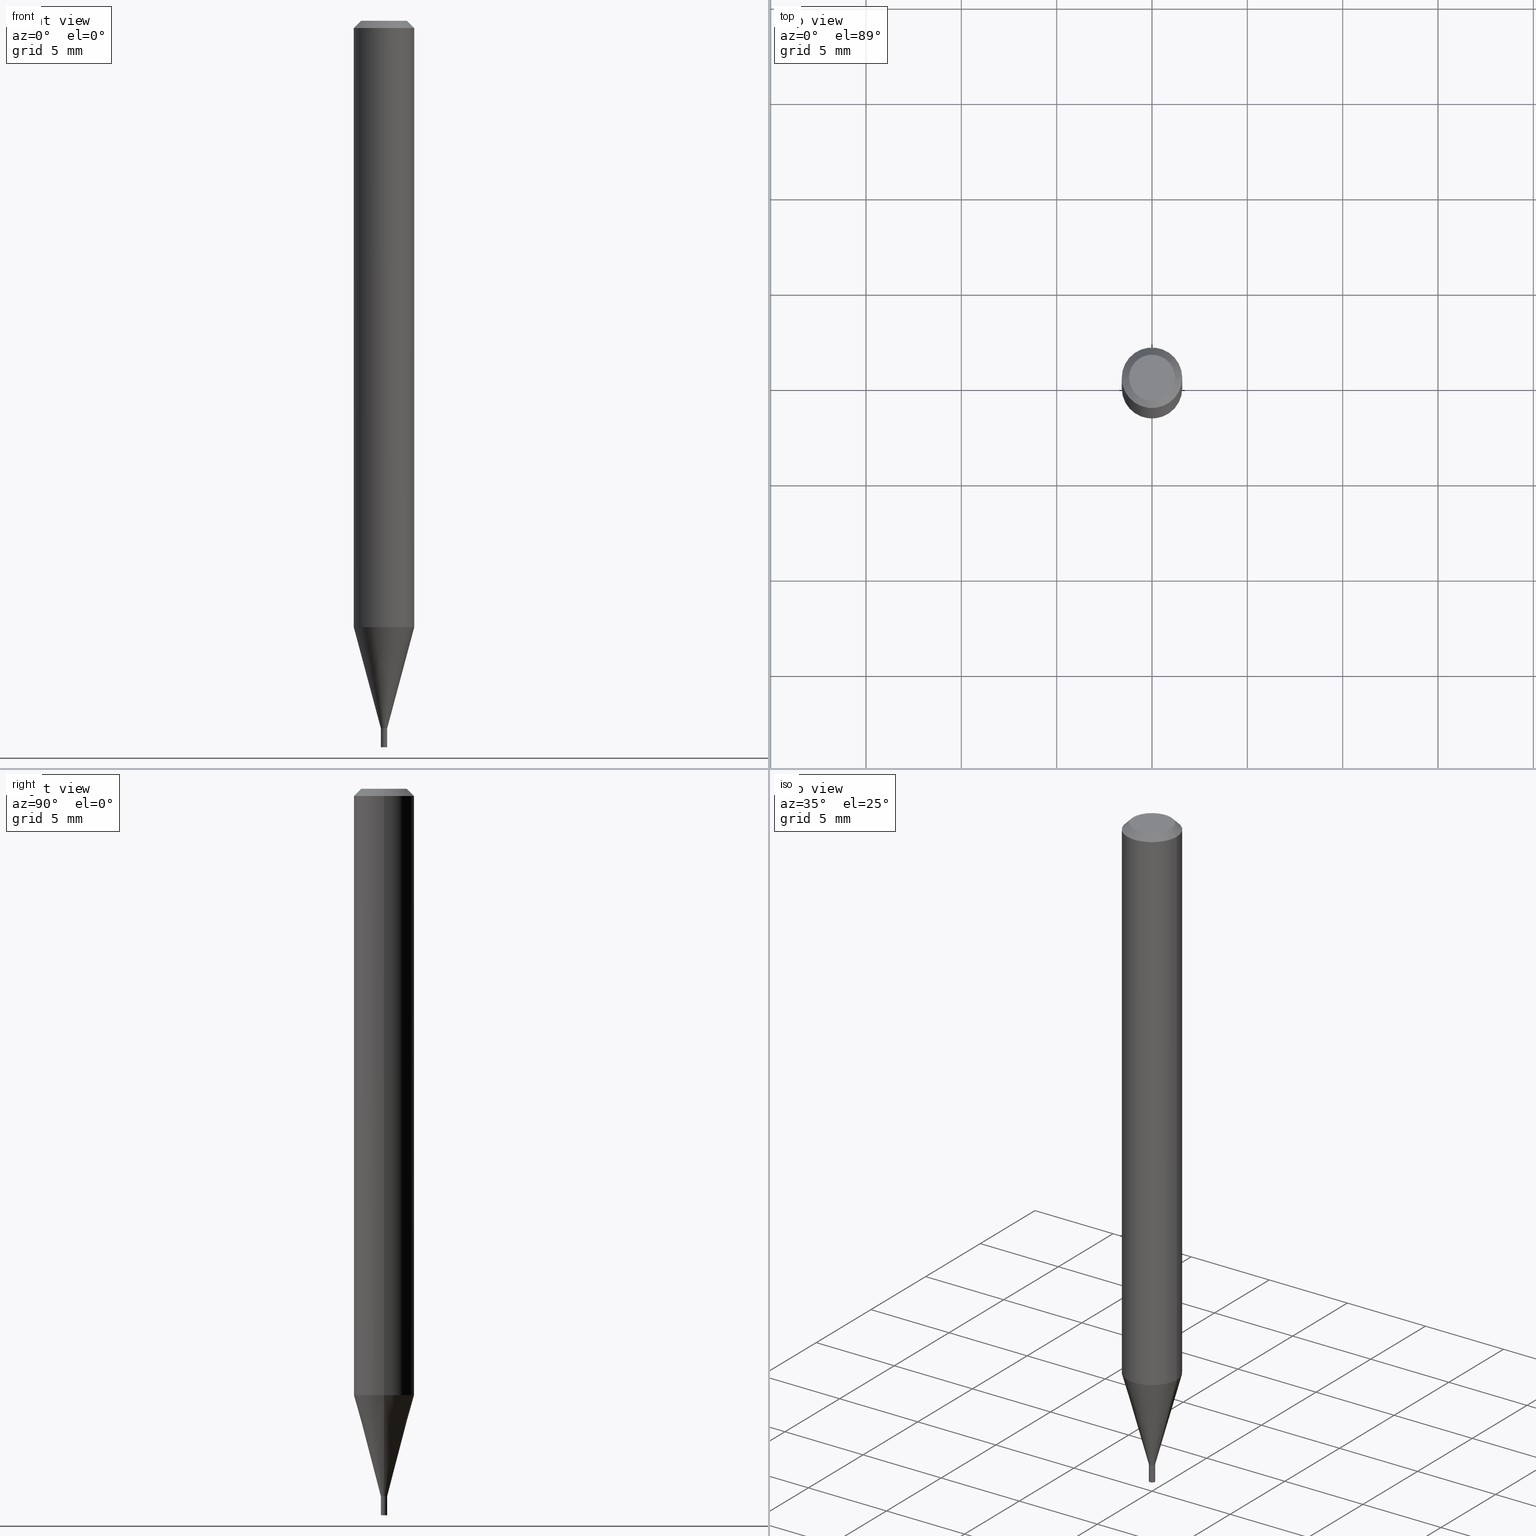
[diagram: canonical four-view strip — front | top / right | iso, engineering-drawing reading convention]
A machine part, canonical four-view strip (front | top / right | iso — engineering-drawing reading convention). The complete STEP part file that produces these views, byte-faithful:
ISO-10303-21;
HEADER;
FILE_DESCRIPTION (( 'STEP AP203' ),
    '1' );
FILE_NAME ('04119.STEP',
    '2024-03-14T17:02:07',
    ( '' ),
    ( '' ),
    'SwSTEP 2.0',
    'SolidWorks 2023',
    '' );
FILE_SCHEMA (( 'CONFIG_CONTROL_DESIGN' ));
ENDSEC;

DATA;
#1 = CC_DESIGN_APPROVAL ( #27, ( #64 ) ) ;
#2 = APPROVAL ( #161, 'UNSPECIFIED' ) ;
#3 = ORIENTED_EDGE ( 'NONE', *, *, #216, .T. ) ;
#4 = ORIENTED_EDGE ( 'NONE', *, *, #445, .T. ) ;
#5 = DIRECTION ( 'NONE',  ( -2.445468806185136597E-29, 3.491481338843145583E-15, 1.000000000000000000 ) ) ;
#6 = CARTESIAN_POINT ( 'NONE',  ( 3.668203209277704895E-29, -5.237222008264718177E-15, -1.500000000000000222 ) ) ;
#7 = DIRECTION ( 'NONE',  ( -2.445468806185136597E-29, 3.491481338843145583E-15, 1.000000000000000000 ) ) ;
#8 = AXIS2_PLACEMENT_3D ( 'NONE', #138, #206, #369 ) ;
#9 = CARTESIAN_POINT ( 'NONE',  ( 3.572829925836484317E-29, -5.101054236049835376E-15, -1.461000000000000076 ) ) ;
#10 = CARTESIAN_POINT ( 'NONE',  ( 0.000000000000000000, 0.000000000000000000, 0.000000000000000000 ) ) ;
#11 = PERSON_AND_ORGANIZATION ( #126, #248 ) ;
#12 = DIRECTION ( 'NONE',  ( -2.445468806185136597E-29, 3.491481338843145583E-15, 1.000000000000000000 ) ) ;
#13 = ADVANCED_FACE ( 'NONE', ( #464 ), #357, .T. ) ;
#14 = DIRECTION ( 'NONE',  ( -2.445468806185136597E-29, 3.491481338843145583E-15, 1.000000000000000000 ) ) ;
#15 = APPROVAL_PERSON_ORGANIZATION ( #118, #400, #158 ) ;
#16 = CARTESIAN_POINT ( 'NONE',  ( 0.04749999999999999362, -4.035134999187546083E-16, 1.823848854028393603E-15 ) ) ;
#17 = LINE ( 'NONE', #448, #249 ) ;
#18 = PLANE ( 'NONE',  #452 ) ;
#19 = LOCAL_TIME ( 13, 2, 7.000000000000000000, #51 ) ;
#20 = CIRCLE ( 'NONE', #340, 0.06250000000000000000 ) ;
#21 = CARTESIAN_POINT ( 'NONE',  ( 3.572829925836483756E-29, -5.101054236049834587E-15, -1.460999999999999854 ) ) ;
#22 = EDGE_LOOP ( 'NONE', ( #361, #144 ) ) ;
#23 = CARTESIAN_POINT ( 'NONE',  ( 3.668203209277705088E-31, -5.237222008264718399E-17, -0.01499999999999999944 ) ) ;
#24 = PRODUCT ( '04119', '04119', '', ( #338 ) ) ;
#25 = LINE ( 'NONE', #151, #307 ) ;
#26 = EDGE_CURVE ( 'NONE', #67, #125, #443, .T. ) ;
#27 = APPROVAL ( #304, 'UNSPECIFIED' ) ;
#28 = EDGE_LOOP ( 'NONE', ( #427, #426, #102, #66 ) ) ;
#29 = CC_DESIGN_APPROVAL ( #2, ( #147 ) ) ;
#30 =( CONVERSION_BASED_UNIT ( 'INCH', #188 ) LENGTH_UNIT ( ) NAMED_UNIT ( #455 ) );
#31 = EDGE_LOOP ( 'NONE', ( #367, #354, #215, #3 ) ) ;
#32 = DIRECTION ( 'NONE',  ( 1.000000000000000000, -6.982962677686258822E-15, 0.000000000000000000 ) ) ;
#33 = ORIENTED_EDGE ( 'NONE', *, *, #181, .T. ) ;
#34 = ORIENTED_EDGE ( 'NONE', *, *, #46, .T. ) ;
#35 = ORIENTED_EDGE ( 'NONE', *, *, #96, .F. ) ;
#36 = APPLICATION_CONTEXT ( 'configuration controlled 3d designs of mechanical parts and assemblies' ) ;
#37 = ORIENTED_EDGE ( 'NONE', *, *, #81, .F. ) ;
#38 = CARTESIAN_POINT ( 'NONE',  ( 3.571607191433392636E-29, -5.099308495380415450E-15, -1.460500000000000131 ) ) ;
#39 = DIRECTION ( 'NONE',  ( 1.000000000000000000, -6.982962677686265922E-15, 4.876176775795935793E-29 ) ) ;
#40 = DIRECTION ( 'NONE',  ( -0.2588190451025211281, 5.211531920934548675E-15, 0.9659258262890682012 ) ) ;
#41 = CARTESIAN_POINT ( 'NONE',  ( 0.006499999999999648420, -5.146443493454794469E-15, -1.461000000000000076 ) ) ;
#42 = APPROVAL_PERSON_ORGANIZATION ( #11, #2, #115 ) ;
#43 = APPROVAL_DATE_TIME ( #197, #27 ) ;
#44 = DIRECTION ( 'NONE',  ( -2.445468806185136597E-29, 3.491481338843145583E-15, 1.000000000000000000 ) ) ;
#45 = ADVANCED_FACE ( 'NONE', ( #49 ), #380, .T. ) ;
#46 = EDGE_CURVE ( 'NONE', #67, #101, #331, .T. ) ;
#47 = CARTESIAN_POINT ( 'NONE',  ( 0.006499999999999998834, -5.146443493454796047E-15, -1.461000000000000076 ) ) ;
#48 = APPLICATION_PROTOCOL_DEFINITION ( 'international standard', 'config_control_design', 1994, #132 ) ;
#49 = FACE_OUTER_BOUND ( 'NONE', #130, .T. ) ;
#50 = CC_DESIGN_SECURITY_CLASSIFICATION ( #64, ( #219 ) ) ;
#51 = COORDINATED_UNIVERSAL_TIME_OFFSET ( 5, 0, .BEHIND. ) ;
#52 = EDGE_CURVE ( 'NONE', #179, #170, #294, .T. ) ;
#53 = DIRECTION ( 'NONE',  ( -2.445468806185136597E-29, 3.491481338843145583E-15, 1.000000000000000000 ) ) ;
#54 = PERSON_AND_ORGANIZATION ( #126, #248 ) ;
#55 = CARTESIAN_POINT ( 'NONE',  ( 0.006499999999999998834, -5.282611265669678847E-15, -1.500000000000000222 ) ) ;
#56 = DIRECTION ( 'NONE',  ( -2.445468806185136877E-29, 3.491481338843145188E-15, 1.000000000000000000 ) ) ;
#57 = AXIS2_PLACEMENT_3D ( 'NONE', #87, #418, #239 ) ;
#58 = DIRECTION ( 'NONE',  ( 1.000000000000000000, -6.982962677686267499E-15, 5.108144071313017768E-29 ) ) ;
#59 = EDGE_CURVE ( 'NONE', #401, #178, #228, .T. ) ;
#60 = CC_DESIGN_DATE_AND_TIME_ASSIGNMENT ( #163, #77, ( #147 ) ) ;
#61 = DIRECTION ( 'NONE',  ( -2.445468806185136597E-29, 3.491481338843145583E-15, 1.000000000000000000 ) ) ;
#62 = ORIENTED_EDGE ( 'NONE', *, *, #279, .T. ) ;
#63 = EDGE_LOOP ( 'NONE', ( #37, #315 ) ) ;
#64 = SECURITY_CLASSIFICATION ( '', '', #153 ) ;
#65 = CARTESIAN_POINT ( 'NONE',  ( -0.006499999999999648420, -5.054868958225431584E-15, -1.461000000000000076 ) ) ;
#66 = ORIENTED_EDGE ( 'NONE', *, *, #445, .F. ) ;
#67 = VERTEX_POINT ( 'NONE', #260 ) ;
#68 = ORIENTED_EDGE ( 'NONE', *, *, #399, .T. ) ;
#69 = AXIS2_PLACEMENT_3D ( 'NONE', #308, #61, #58 ) ;
#70 = EDGE_LOOP ( 'NONE', ( #430, #246 ) ) ;
#71 = AXIS2_PLACEMENT_3D ( 'NONE', #10, #195, #154 ) ;
#72 = EDGE_CURVE ( 'NONE', #101, #251, #368, .T. ) ;
#73 = DIRECTION ( 'NONE',  ( -2.438088387897960049E-29, 3.491481338843145188E-15, 1.000000000000000000 ) ) ;
#74 = DIRECTION ( 'NONE',  ( -2.445468806185136597E-29, 3.491481338843145583E-15, 1.000000000000000000 ) ) ;
#75 = DIRECTION ( 'NONE',  ( 2.445468806185136597E-29, -3.491481338843145583E-15, -1.000000000000000000 ) ) ;
#76 = CYLINDRICAL_SURFACE ( 'NONE', #363, 0.06250000000000000000 ) ;
#77 = DATE_TIME_ROLE ( 'creation_date' ) ;
#78 = DIRECTION ( 'NONE',  ( -2.445468806185136597E-29, 3.491481338843145583E-15, 1.000000000000000000 ) ) ;
#79 = CARTESIAN_POINT ( 'NONE',  ( 0.06250000000000001388, -4.807787801391715089E-15, -1.252005154776141937 ) ) ;
#80 = CALENDAR_DATE ( 2024, 14, 3 ) ;
#81 = EDGE_CURVE ( 'NONE', #207, #326, #431, .T. ) ;
#82 = CARTESIAN_POINT ( 'NONE',  ( -0.006499999999999998834, -5.122952844332871012E-15, -1.500000000000000222 ) ) ;
#83 = AXIS2_PLACEMENT_3D ( 'NONE', #334, #235, #413 ) ;
#84 = PERSON_AND_ORGANIZATION ( #126, #248 ) ;
#85 = CARTESIAN_POINT ( 'NONE',  ( 3.571607191433392636E-29, -5.099308495380415450E-15, -1.460500000000000131 ) ) ;
#86 = CARTESIAN_POINT ( 'NONE',  ( -0.005999999999999998390, -5.058421671904228538E-15, -1.460999999999999854 ) ) ;
#87 = CARTESIAN_POINT ( 'NONE',  ( 4.538925740499645275E-17, 0.006499999999994897880, -1.461000000000000076 ) ) ;
#88 = ORIENTED_EDGE ( 'NONE', *, *, #433, .F. ) ;
#89 = EDGE_CURVE ( 'NONE', #401, #125, #20, .T. ) ;
#90 = CC_DESIGN_DATE_AND_TIME_ASSIGNMENT ( #411, #268, ( #64 ) ) ;
#91 = CIRCLE ( 'NONE', #157, 0.005999999999999998390 ) ;
#92 = CARTESIAN_POINT ( 'NONE',  ( 0.000000000000000000, 0.000000000000000000, 0.000000000000000000 ) ) ;
#93 = ORIENTED_EDGE ( 'NONE', *, *, #52, .F. ) ;
#94 = CARTESIAN_POINT ( 'NONE',  ( 3.572829925836484317E-29, -5.101054236049835376E-15, -1.461000000000000076 ) ) ;
#95 = VERTEX_POINT ( 'NONE', #116 ) ;
#96 = EDGE_CURVE ( 'NONE', #95, #178, #435, .T. ) ;
#97 = ORIENTED_EDGE ( 'NONE', *, *, #26, .F. ) ;
#98 = AXIS2_PLACEMENT_3D ( 'NONE', #242, #274, #127 ) ;
#99 = DIRECTION ( 'NONE',  ( -2.445468806185136597E-29, 3.491481338843145583E-15, 1.000000000000000000 ) ) ;
#100 = EDGE_LOOP ( 'NONE', ( #309, #388, #327, #362 ) ) ;
#101 = VERTEX_POINT ( 'NONE', #444 ) ;
#102 = ORIENTED_EDGE ( 'NONE', *, *, #350, .F. ) ;
#103 = ADVANCED_FACE ( 'NONE', ( #152 ), #186, .T. ) ;
#104 = CC_DESIGN_PERSON_AND_ORGANIZATION_ASSIGNMENT ( #378, #376, ( #147 ) ) ;
#105 =( GEOMETRIC_REPRESENTATION_CONTEXT ( 3 ) GLOBAL_UNCERTAINTY_ASSIGNED_CONTEXT ( ( #225 ) ) GLOBAL_UNIT_ASSIGNED_CONTEXT ( ( #30, #258, #223 ) ) REPRESENTATION_CONTEXT ( 'NONE', 'WORKASPACE' ) );
#106 = CARTESIAN_POINT ( 'NONE',  ( -0.006499999999999921639, 4.618527782440595529E-17, -3.197307808665649928E-31 ) ) ;
#107 = AXIS2_PLACEMENT_3D ( 'NONE', #139, #14, #412 ) ;
#108 = DIRECTION ( 'NONE',  ( -2.445468806185136877E-29, 3.491481338843145188E-15, 1.000000000000000000 ) ) ;
#109 = APPLICATION_PROTOCOL_DEFINITION ( 'international standard', 'config_control_design', 1994, #36 ) ;
#110 = CARTESIAN_POINT ( 'NONE',  ( -0.06250000000000000000, 3.840629472727444916E-16, -0.01499999999999999944 ) ) ;
#111 = CALENDAR_DATE ( 2024, 14, 3 ) ;
#112 = LOCAL_TIME ( 13, 2, 7.000000000000000000, #382 ) ;
#113 = CARTESIAN_POINT ( 'NONE',  ( 3.061739551188048942E-29, -4.371352634036324208E-15, -1.252005154776141937 ) ) ;
#114 = VECTOR ( 'NONE', #298, 39.37007874015748143 ) ;
#115 = APPROVAL_ROLE ( '' ) ;
#116 = CARTESIAN_POINT ( 'NONE',  ( -0.04749999999999999362, 3.578768372314242553E-16, 1.823848854028388475E-15 ) ) ;
#117 = FACE_OUTER_BOUND ( 'NONE', #289, .T. ) ;
#118 = PERSON_AND_ORGANIZATION ( #126, #248 ) ;
#119 = DIRECTION ( 'NONE',  ( -0.7071067811869503617, 7.493145998871808820E-15, 0.7071067811861444508 ) ) ;
#120 = ORIENTED_EDGE ( 'NONE', *, *, #285, .T. ) ;
#121 = CIRCLE ( 'NONE', #98, 0.06250000000000000000 ) ;
#122 = CALENDAR_DATE ( 2024, 14, 3 ) ;
#123 = AXIS2_PLACEMENT_3D ( 'NONE', #267, #78, #224 ) ;
#124 = CYLINDRICAL_SURFACE ( 'NONE', #460, 0.006499999999999921639 ) ;
#125 = VERTEX_POINT ( 'NONE', #79 ) ;
#126 = PERSON ( 'UNSPECIFIED', 'UNSPECIFIED', 'UNSPECIFIED', ('UNSPECIFIED'), ('UNSPECIFIED'), ('UNSPECIFIED') ) ;
#127 = DIRECTION ( 'NONE',  ( 1.000000000000000000, -6.982962677686266711E-15, 0.000000000000000000 ) ) ;
#128 = ADVANCED_FACE ( 'NONE', ( #407 ), #439, .T. ) ;
#129 = DIRECTION ( 'NONE',  ( 1.000000000000000000, -6.982962677686334553E-15, 0.000000000000000000 ) ) ;
#130 = EDGE_LOOP ( 'NONE', ( #253, #243, #325, #68 ) ) ;
#131 = VECTOR ( 'NONE', #40, 39.37007874015748143 ) ;
#132 = APPLICATION_CONTEXT ( 'configuration controlled 3d designs of mechanical parts and assemblies' ) ;
#133 = CONICAL_SURFACE ( 'NONE', #409, 0.006499999999999648420, 0.2617993877991497964 ) ;
#134 = PRODUCT_DEFINITION_SHAPE ( 'NONE', 'NONE',  #147 ) ;
#135 = DIRECTION ( 'NONE',  ( -2.445468806185136597E-29, 3.491481338843145583E-15, 1.000000000000000000 ) ) ;
#136 = ORIENTED_EDGE ( 'NONE', *, *, #221, .F. ) ;
#137 = ADVANCED_FACE ( 'NONE', ( #404 ), #76, .T. ) ;
#138 = CARTESIAN_POINT ( 'NONE',  ( 3.572829925836483756E-29, -5.101054236049834587E-15, -1.460999999999999854 ) ) ;
#139 = CARTESIAN_POINT ( 'NONE',  ( 3.572829925836483756E-29, -5.101054236049834587E-15, -1.460999999999999854 ) ) ;
#140 = CYLINDRICAL_SURFACE ( 'NONE', #402, 0.006499999999999998834 ) ;
#141 = EDGE_LOOP ( 'NONE', ( #461, #317, #4, #93 ) ) ;
#142 = CIRCLE ( 'NONE', #218, 0.06250000000000000000 ) ;
#143 = CIRCLE ( 'NONE', #196, 0.06250000000000000000 ) ;
#144 = ORIENTED_EDGE ( 'NONE', *, *, #230, .F. ) ;
#145 = ORIENTED_EDGE ( 'NONE', *, *, #26, .T. ) ;
#146 = ADVANCED_FACE ( 'NONE', ( #370 ), #148, .F. ) ;
#147 = PRODUCT_DEFINITION ( 'UNKNOWN', '', #219, #276 ) ;
#148 = PLANE ( 'NONE',  #453 ) ;
#149 = DIRECTION ( 'NONE',  ( 1.000000000000000000, -6.982962677686262766E-15, 0.000000000000000000 ) ) ;
#150 = CONICAL_SURFACE ( 'NONE', #174, 0.06250000000000000000, 0.7853981633973876608 ) ;
#151 = CARTESIAN_POINT ( 'NONE',  ( 0.06250000000000000000, -4.811533449433679005E-16, -0.01499999999999999944 ) ) ;
#152 = FACE_OUTER_BOUND ( 'NONE', #28, .T. ) ;
#153 = SECURITY_CLASSIFICATION_LEVEL ( 'unclassified' ) ;
#154 = DIRECTION ( 'NONE',  ( 1.000000000000000000, -6.982962677686266711E-15, 4.876176775795935793E-29 ) ) ;
#155 = LOCAL_TIME ( 13, 2, 7.000000000000000000, #299 ) ;
#156 = CARTESIAN_POINT ( 'NONE',  ( -0.06250000000000000000, 4.440892098500626162E-16, -3.074334431409316114E-30 ) ) ;
#157 = AXIS2_PLACEMENT_3D ( 'NONE', #21, #420, #129 ) ;
#158 = APPROVAL_ROLE ( '' ) ;
#159 = FACE_OUTER_BOUND ( 'NONE', #434, .T. ) ;
#160 = EDGE_CURVE ( 'NONE', #125, #401, #143, .T. ) ;
#161 = APPROVAL_STATUS ( 'not_yet_approved' ) ;
#162 = PLANE ( 'NONE',  #57 ) ;
#163 = DATE_AND_TIME ( #416, #271 ) ;
#164 = CARTESIAN_POINT ( 'NONE',  ( 3.316907271900976096E-16, 0.04749999999999999362, 7.460790634191459752E-16 ) ) ;
#165 = VERTEX_POINT ( 'NONE', #375 ) ;
#166 = CIRCLE ( 'NONE', #8, 0.005999999999999998390 ) ;
#167 = AXIS2_PLACEMENT_3D ( 'NONE', #296, #75, #222 ) ;
#168 = ADVANCED_FACE ( 'NONE', ( #190 ), #133, .T. ) ;
#169 = CARTESIAN_POINT ( 'NONE',  ( -0.005999999999999998390, -5.055772444730117337E-15, -1.460999999999999854 ) ) ;
#170 = VERTEX_POINT ( 'NONE', #47 ) ;
#171 = DIRECTION ( 'NONE',  ( -2.445468806185136597E-29, 3.491481338843145583E-15, 1.000000000000000000 ) ) ;
#172 = CARTESIAN_POINT ( 'NONE',  ( 0.006499999999999998834, -4.538925740496073214E-17, 3.169514904267357635E-31 ) ) ;
#173 = CIRCLE ( 'NONE', #436, 0.006499999999999998834 ) ;
#174 = AXIS2_PLACEMENT_3D ( 'NONE', #23, #352, #277 ) ;
#175 = CARTESIAN_POINT ( 'NONE',  ( 0.000000000000000000, 0.000000000000000000, 0.000000000000000000 ) ) ;
#176 = ORIENTED_EDGE ( 'NONE', *, *, #221, .T. ) ;
#177 = DIRECTION ( 'NONE',  ( 1.000000000000000000, -6.982962677686266711E-15, 0.000000000000000000 ) ) ;
#178 = VERTEX_POINT ( 'NONE', #192 ) ;
#179 = VERTEX_POINT ( 'NONE', #312 ) ;
#180 = AXIS2_PLACEMENT_3D ( 'NONE', #381, #387, #198 ) ;
#181 = EDGE_CURVE ( 'NONE', #125, #220, #17, .T. ) ;
#182 = AXIS2_PLACEMENT_3D ( 'NONE', #85, #171, #202 ) ;
#183 = ORIENTED_EDGE ( 'NONE', *, *, #89, .F. ) ;
#184 = ORIENTED_EDGE ( 'NONE', *, *, #160, .T. ) ;
#185 = DIRECTION ( 'NONE',  ( -2.445468806185136597E-29, 3.491481338843145583E-15, 1.000000000000000000 ) ) ;
#186 = CYLINDRICAL_SURFACE ( 'NONE', #262, 0.006499999999999998834 ) ;
#187 = ADVANCED_FACE ( 'NONE', ( #305 ), #343, .F. ) ;
#188 = LENGTH_MEASURE_WITH_UNIT ( LENGTH_MEASURE( 0.02539999999999999897 ), #392 );
#189 = DIRECTION ( 'NONE',  ( 1.000000000000000000, -6.982962677686258822E-15, 0.000000000000000000 ) ) ;
#190 = FACE_OUTER_BOUND ( 'NONE', #466, .T. ) ;
#191 = PERSON_AND_ORGANIZATION ( #126, #248 ) ;
#192 = CARTESIAN_POINT ( 'NONE',  ( -0.06250000000000000000, -1.767773217209423028E-15, -0.01499999999999999944 ) ) ;
#193 = COORDINATED_UNIVERSAL_TIME_OFFSET ( 5, 0, .BEHIND. ) ;
#194 = ADVANCED_FACE ( 'NONE', ( #117 ), #150, .T. ) ;
#195 = DIRECTION ( 'NONE',  ( -2.445468806185136597E-29, 3.491481338843145583E-15, 1.000000000000000000 ) ) ;
#196 = AXIS2_PLACEMENT_3D ( 'NONE', #113, #330, #227 ) ;
#197 = DATE_AND_TIME ( #111, #19 ) ;
#198 = DIRECTION ( 'NONE',  ( 1.000000000000000000, -6.982962677686334553E-15, 0.000000000000000000 ) ) ;
#199 = PERSON_AND_ORGANIZATION_ROLE ( 'design_supplier' ) ;
#200 = CARTESIAN_POINT ( 'NONE',  ( 0.005999999999999998390, -5.142952012115952251E-15, -1.460999999999999854 ) ) ;
#201 = ORIENTED_EDGE ( 'NONE', *, *, #216, .F. ) ;
#202 = DIRECTION ( 'NONE',  ( 1.000000000000000000, -6.982962677686198080E-15, 0.000000000000000000 ) ) ;
#203 = CONICAL_SURFACE ( 'NONE', #339, 0.006499999999999648420, 0.2617993877991497964 ) ;
#204 = VECTOR ( 'NONE', #261, 39.37007874015748143 ) ;
#205 = DIRECTION ( 'NONE',  ( -2.445468806185136877E-29, 3.491481338843145188E-15, 1.000000000000000000 ) ) ;
#206 = DIRECTION ( 'NONE',  ( -2.445468806185136597E-29, 3.491481338843145583E-15, 1.000000000000000000 ) ) ;
#207 = VERTEX_POINT ( 'NONE', #55 ) ;
#208 = DIRECTION ( 'NONE',  ( -2.445468806185136597E-29, 3.491481338843145583E-15, 1.000000000000000000 ) ) ;
#209 = ADVANCED_FACE ( 'NONE', ( #450 ), #162, .F. ) ;
#210 = EDGE_LOOP ( 'NONE', ( #184, #213, #432, #344 ) ) ;
#211 = AXIS2_PLACEMENT_3D ( 'NONE', #94, #99, #250 ) ;
#212 = CLOSED_SHELL ( 'NONE', ( #103, #146, #446, #209 ) ) ;
#213 = ORIENTED_EDGE ( 'NONE', *, *, #59, .T. ) ;
#214 = FACE_OUTER_BOUND ( 'NONE', #31, .T. ) ;
#215 = ORIENTED_EDGE ( 'NONE', *, *, #297, .T. ) ;
#216 = EDGE_CURVE ( 'NONE', #320, #251, #389, .T. ) ;
#217 = ORIENTED_EDGE ( 'NONE', *, *, #313, .F. ) ;
#218 = AXIS2_PLACEMENT_3D ( 'NONE', #316, #428, #177 ) ;
#219 = PRODUCT_DEFINITION_FORMATION_WITH_SPECIFIED_SOURCE ( 'ANY', '', #24, .NOT_KNOWN. ) ;
#220 = VERTEX_POINT ( 'NONE', #275 ) ;
#221 = EDGE_CURVE ( 'NONE', #286, #95, #301, .T. ) ;
#222 = DIRECTION ( 'NONE',  ( -1.000000000000000000, 6.982962677686266711E-15, 0.000000000000000000 ) ) ;
#223 =( NAMED_UNIT ( * ) SI_UNIT ( $, .STERADIAN. ) SOLID_ANGLE_UNIT ( ) );
#224 = DIRECTION ( 'NONE',  ( 1.000000000000000000, -6.982962677686258822E-15, 0.000000000000000000 ) ) ;
#225 = UNCERTAINTY_MEASURE_WITH_UNIT (LENGTH_MEASURE( 1.000000000000000082E-05 ), #30, 'distance_accuracy_value', 'NONE');
#226 = COORDINATED_UNIVERSAL_TIME_OFFSET ( 5, 0, .BEHIND. ) ;
#227 = DIRECTION ( 'NONE',  ( 1.000000000000000000, -6.982962677686262766E-15, 0.000000000000000000 ) ) ;
#228 = LINE ( 'NONE', #156, #204 ) ;
#229 = PERSON_AND_ORGANIZATION ( #126, #248 ) ;
#230 = EDGE_CURVE ( 'NONE', #247, #165, #91, .T. ) ;
#231 = DIRECTION ( 'NONE',  ( 1.000000000000000000, -6.982962677686267499E-15, 4.876176775795935793E-29 ) ) ;
#232 = APPROVAL_DATE_TIME ( #442, #2 ) ;
#233 = AXIS2_PLACEMENT_3D ( 'NONE', #38, #74, #322 ) ;
#234 = FACE_OUTER_BOUND ( 'NONE', #278, .T. ) ;
#235 = DIRECTION ( 'NONE',  ( 0.000000000000000000, 0.000000000000000000, 1.000000000000000000 ) ) ;
#236 = FACE_OUTER_BOUND ( 'NONE', #254, .T. ) ;
#237 = ADVANCED_FACE ( 'NONE', ( #422 ), #124, .F. ) ;
#238 = CARTESIAN_POINT ( 'NONE',  ( 3.572829925836484317E-29, -5.101054236049835376E-15, -1.461000000000000076 ) ) ;
#239 = DIRECTION ( 'NONE',  ( -1.000000000000000000, 6.982962677686265922E-15, -4.876176775795935793E-29 ) ) ;
#240 = VECTOR ( 'NONE', #119, 39.37007874015748854 ) ;
#241 = ORIENTED_EDGE ( 'NONE', *, *, #59, .F. ) ;
#242 = CARTESIAN_POINT ( 'NONE',  ( 3.668203209277705088E-31, -5.237222008264718399E-17, -0.01499999999999999944 ) ) ;
#243 = ORIENTED_EDGE ( 'NONE', *, *, #263, .F. ) ;
#244 = ADVANCED_FACE ( 'NONE', ( #236 ), #437, .T. ) ;
#245 = CARTESIAN_POINT ( 'NONE',  ( -0.006499999999999998834, 4.618527782440650380E-17, -3.197307808665688464E-31 ) ) ;
#246 = ORIENTED_EDGE ( 'NONE', *, *, #52, .T. ) ;
#247 = VERTEX_POINT ( 'NONE', #169 ) ;
#248 = ORGANIZATION ( 'UNSPECIFIED', 'UNSPECIFIED', '' ) ;
#249 = VECTOR ( 'NONE', #56, 39.37007874015748143 ) ;
#250 = DIRECTION ( 'NONE',  ( 1.000000000000000000, -6.982962677686336919E-15, 0.000000000000000000 ) ) ;
#251 = VERTEX_POINT ( 'NONE', #383 ) ;
#252 = CC_DESIGN_PERSON_AND_ORGANIZATION_ASSIGNMENT ( #229, #273, ( #24 ) ) ;
#253 = ORIENTED_EDGE ( 'NONE', *, *, #385, .F. ) ;
#254 = EDGE_LOOP ( 'NONE', ( #359, #120, #201, #217 ) ) ;
#255 = AXIS2_PLACEMENT_3D ( 'NONE', #6, #208, #360 ) ;
#256 = AXIS2_PLACEMENT_3D ( 'NONE', #238, #272, #456 ) ;
#257 = CARTESIAN_POINT ( 'NONE',  ( 3.576687321579069994E-29, -5.368277968210015545E-15, -1.500000000000000222 ) ) ;
#258 =( NAMED_UNIT ( * ) PLANE_ANGLE_UNIT ( ) SI_UNIT ( $, .RADIAN. ) );
#259 = CARTESIAN_POINT ( 'NONE',  ( 3.572829925836484317E-29, -5.101054236049835376E-15, -1.461000000000000076 ) ) ;
#260 = CARTESIAN_POINT ( 'NONE',  ( 0.006499999999999648420, -5.146443493454794469E-15, -1.461000000000000076 ) ) ;
#261 = DIRECTION ( 'NONE',  ( -2.445468806185136877E-29, 3.491481338843145188E-15, 1.000000000000000000 ) ) ;
#262 = AXIS2_PLACEMENT_3D ( 'NONE', #295, #12, #231 ) ;
#263 = EDGE_CURVE ( 'NONE', #95, #286, #318, .T. ) ;
#264 = CC_DESIGN_PERSON_AND_ORGANIZATION_ASSIGNMENT ( #449, #199, ( #219 ) ) ;
#265 = APPROVAL_DATE_TIME ( #306, #400 ) ;
#266 = MANIFOLD_SOLID_BREP ( 'Body-Move/Copy2[2]', #373 ) ;
#267 = CARTESIAN_POINT ( 'NONE',  ( 3.668203209277704895E-29, -5.237222008264718177E-15, -1.500000000000000222 ) ) ;
#268 = DATE_TIME_ROLE ( 'classification_date' ) ;
#269 = DIRECTION ( 'NONE',  ( -1.000000000000000000, 6.982962677686265922E-15, -4.876176775795935793E-29 ) ) ;
#270 = ORIENTED_EDGE ( 'NONE', *, *, #297, .F. ) ;
#271 = LOCAL_TIME ( 13, 2, 7.000000000000000000, #193 ) ;
#272 = DIRECTION ( 'NONE',  ( -2.438088387897960049E-29, 3.491481338843145188E-15, 1.000000000000000000 ) ) ;
#273 = PERSON_AND_ORGANIZATION_ROLE ( 'design_owner' ) ;
#274 = DIRECTION ( 'NONE',  ( -2.445468806185136597E-29, 3.491481338843145583E-15, 1.000000000000000000 ) ) ;
#275 = CARTESIAN_POINT ( 'NONE',  ( 0.06250000000000000000, -4.888073874380388472E-16, -0.01499999999999999944 ) ) ;
#276 = DESIGN_CONTEXT ( 'detailed design', #132, 'design' ) ;
#277 = DIRECTION ( 'NONE',  ( -1.000000000000000000, 6.982962677686266711E-15, 0.000000000000000000 ) ) ;
#278 = EDGE_LOOP ( 'NONE', ( #34, #393, #458, #97 ) ) ;
#279 = EDGE_CURVE ( 'NONE', #220, #178, #121, .T. ) ;
#280 = DIRECTION ( 'NONE',  ( -2.445468806185136877E-29, 3.491481338843145188E-15, 1.000000000000000000 ) ) ;
#281 = ORIENTED_EDGE ( 'NONE', *, *, #462, .F. ) ;
#282 = DIRECTION ( 'NONE',  ( -2.445468806185136877E-29, 3.491481338843145188E-15, 1.000000000000000000 ) ) ;
#283 = ORIENTED_EDGE ( 'NONE', *, *, #89, .T. ) ;
#284 = CARTESIAN_POINT ( 'NONE',  ( 0.000000000000000000, 0.000000000000000000, 0.000000000000000000 ) ) ;
#285 = EDGE_CURVE ( 'NONE', #247, #251, #303, .T. ) ;
#286 = VERTEX_POINT ( 'NONE', #16 ) ;
#287 = AXIS2_PLACEMENT_3D ( 'NONE', #175, #319, #293 ) ;
#288 = AXIS2_PLACEMENT_3D ( 'NONE', #337, #7, #374 ) ;
#289 = EDGE_LOOP ( 'NONE', ( #136, #356, #62, #35 ) ) ;
#290 = ORIENTED_EDGE ( 'NONE', *, *, #462, .T. ) ;
#291 = CARTESIAN_POINT ( 'NONE',  ( 3.572829925836484317E-29, -5.101054236049835376E-15, -1.461000000000000076 ) ) ;
#292 = CIRCLE ( 'NONE', #211, 0.006499999999999648420 ) ;
#293 = DIRECTION ( 'NONE',  ( 1.000000000000000000, -6.982962677686265922E-15, 4.876176775795935793E-29 ) ) ;
#294 = CIRCLE ( 'NONE', #310, 0.006499999999999998834 ) ;
#295 = CARTESIAN_POINT ( 'NONE',  ( 0.000000000000000000, 0.000000000000000000, 0.000000000000000000 ) ) ;
#296 = CARTESIAN_POINT ( 'NONE',  ( 3.668203209277705088E-31, -5.237222008264718399E-17, -0.01499999999999999944 ) ) ;
#297 = EDGE_CURVE ( 'NONE', #67, #320, #384, .T. ) ;
#298 = DIRECTION ( 'NONE',  ( 0.2588190451025211281, 1.565188264969623940E-15, 0.9659258262890682012 ) ) ;
#299 = COORDINATED_UNIVERSAL_TIME_OFFSET ( 5, 0, .BEHIND. ) ;
#300 = DIRECTION ( 'NONE',  ( -2.445468806185136597E-29, 3.491481338843145583E-15, 1.000000000000000000 ) ) ;
#301 = CIRCLE ( 'NONE', #364, 0.04749999999999999362 ) ;
#302 = APPROVAL_STATUS ( 'not_yet_approved' ) ;
#303 = LINE ( 'NONE', #86, #240 ) ;
#304 = APPROVAL_STATUS ( 'not_yet_approved' ) ;
#305 = FACE_OUTER_BOUND ( 'NONE', #22, .T. ) ;
#306 = DATE_AND_TIME ( #122, #424 ) ;
#307 = VECTOR ( 'NONE', #394, 39.37007874015748854 ) ;
#308 = CARTESIAN_POINT ( 'NONE',  ( -4.460165479722938536E-44, 6.367934238710582481E-30, 1.823848854028390842E-15 ) ) ;
#309 = ORIENTED_EDGE ( 'NONE', *, *, #285, .F. ) ;
#310 = AXIS2_PLACEMENT_3D ( 'NONE', #291, #44, #189 ) ;
#311 = DIRECTION ( 'NONE',  ( 1.000000000000000000, -6.982962677686265922E-15, 4.876176775795935793E-29 ) ) ;
#312 = CARTESIAN_POINT ( 'NONE',  ( -0.006499999999999998834, -5.122952844332871012E-15, -1.461000000000000076 ) ) ;
#313 = EDGE_CURVE ( 'NONE', #165, #320, #415, .T. ) ;
#314 = PRODUCT_RELATED_PRODUCT_CATEGORY ( 'detail', '', ( #24 ) ) ;
#315 = ORIENTED_EDGE ( 'NONE', *, *, #391, .F. ) ;
#316 = CARTESIAN_POINT ( 'NONE',  ( 3.668203209277705088E-31, -5.237222008264718399E-17, -0.01499999999999999944 ) ) ;
#317 = ORIENTED_EDGE ( 'NONE', *, *, #391, .T. ) ;
#318 = CIRCLE ( 'NONE', #69, 0.04749999999999999362 ) ;
#319 = DIRECTION ( 'NONE',  ( -2.445468806185136597E-29, 3.491481338843145583E-15, 1.000000000000000000 ) ) ;
#320 = VERTEX_POINT ( 'NONE', #346 ) ;
#321 = ADVANCED_FACE ( 'NONE', ( #159 ), #18, .F. ) ;
#322 = DIRECTION ( 'NONE',  ( 1.000000000000000000, -6.982962677686198080E-15, 0.000000000000000000 ) ) ;
#323 = ORIENTED_EDGE ( 'NONE', *, *, #399, .F. ) ;
#324 = ADVANCED_BREP_SHAPE_REPRESENTATION ( '04119', ( #419, #266, #83 ), #105 ) ;
#325 = ORIENTED_EDGE ( 'NONE', *, *, #96, .T. ) ;
#326 = VERTEX_POINT ( 'NONE', #82 ) ;
#327 = ORIENTED_EDGE ( 'NONE', *, *, #313, .T. ) ;
#328 = ADVANCED_FACE ( 'NONE', ( #234 ), #203, .T. ) ;
#329 = LINE ( 'NONE', #172, #421 ) ;
#330 = DIRECTION ( 'NONE',  ( -2.445468806185136597E-29, 3.491481338843145583E-15, 1.000000000000000000 ) ) ;
#331 = CIRCLE ( 'NONE', #288, 0.006499999999999648420 ) ;
#332 = DIRECTION ( 'NONE',  ( -0.7071067811865044961, 2.468850131081806621E-15, -0.7071067811865903163 ) ) ;
#333 = ADVANCED_FACE ( 'NONE', ( #214 ), #425, .F. ) ;
#334 = CARTESIAN_POINT ( 'NONE',  ( 0.000000000000000000, 0.000000000000000000, 0.000000000000000000 ) ) ;
#335 = EDGE_CURVE ( 'NONE', #165, #247, #166, .T. ) ;
#336 = DIRECTION ( 'NONE',  ( 1.000000000000000000, -6.982962677686266711E-15, 4.876176775795935793E-29 ) ) ;
#337 = CARTESIAN_POINT ( 'NONE',  ( 3.572829925836484317E-29, -5.101054236049835376E-15, -1.461000000000000076 ) ) ;
#338 = MECHANICAL_CONTEXT ( 'NONE', #36, 'mechanical' ) ;
#339 = AXIS2_PLACEMENT_3D ( 'NONE', #9, #135, #353 ) ;
#340 = AXIS2_PLACEMENT_3D ( 'NONE', #441, #300, #149 ) ;
#341 = DIRECTION ( 'NONE',  ( 0.7071067811869503617, -2.468850131086477072E-15, 0.7071067811861444508 ) ) ;
#342 = SHAPE_DEFINITION_REPRESENTATION ( #134, #324 ) ;
#343 = PLANE ( 'NONE',  #256 ) ;
#344 = ORIENTED_EDGE ( 'NONE', *, *, #181, .F. ) ;
#345 = APPROVAL_ROLE ( '' ) ;
#346 = CARTESIAN_POINT ( 'NONE',  ( 0.006500000000000194858, -5.144697752785376910E-15, -1.460500000000000131 ) ) ;
#347 = CARTESIAN_POINT ( 'NONE',  ( -4.460165479722938536E-44, 6.367934238710582481E-30, 1.823848854028390842E-15 ) ) ;
#348 = EDGE_LOOP ( 'NONE', ( #281, #396, #398, #270 ) ) ;
#349 = VECTOR ( 'NONE', #332, 39.37007874015748854 ) ;
#350 = EDGE_CURVE ( 'NONE', #170, #179, #173, .T. ) ;
#351 = CC_DESIGN_PERSON_AND_ORGANIZATION_ASSIGNMENT ( #54, #451, ( #219 ) ) ;
#352 = DIRECTION ( 'NONE',  ( 2.445468806185136597E-29, -3.491481338843145583E-15, -1.000000000000000000 ) ) ;
#353 = DIRECTION ( 'NONE',  ( 1.000000000000000000, -6.982962677686336919E-15, 0.000000000000000000 ) ) ;
#354 = ORIENTED_EDGE ( 'NONE', *, *, #46, .F. ) ;
#355 = VECTOR ( 'NONE', #280, 39.37007874015748143 ) ;
#356 = ORIENTED_EDGE ( 'NONE', *, *, #385, .T. ) ;
#357 = CONICAL_SURFACE ( 'NONE', #107, 0.005999999999999998390, 0.7853981633980181565 ) ;
#358 = FACE_OUTER_BOUND ( 'NONE', #141, .T. ) ;
#359 = ORIENTED_EDGE ( 'NONE', *, *, #335, .T. ) ;
#360 = DIRECTION ( 'NONE',  ( 1.000000000000000000, -6.982962677686258822E-15, 0.000000000000000000 ) ) ;
#361 = ORIENTED_EDGE ( 'NONE', *, *, #335, .F. ) ;
#362 = ORIENTED_EDGE ( 'NONE', *, *, #414, .F. ) ;
#363 = AXIS2_PLACEMENT_3D ( 'NONE', #377, #5, #336 ) ;
#364 = AXIS2_PLACEMENT_3D ( 'NONE', #347, #417, #457 ) ;
#365 = EDGE_CURVE ( 'NONE', #326, #179, #463, .T. ) ;
#366 = CC_DESIGN_PERSON_AND_ORGANIZATION_ASSIGNMENT ( #84, #447, ( #64 ) ) ;
#367 = ORIENTED_EDGE ( 'NONE', *, *, #72, .F. ) ;
#368 = LINE ( 'NONE', #106, #403 ) ;
#369 = DIRECTION ( 'NONE',  ( 1.000000000000000000, -6.982962677686334553E-15, 0.000000000000000000 ) ) ;
#370 = FACE_OUTER_BOUND ( 'NONE', #63, .T. ) ;
#371 = VECTOR ( 'NONE', #205, 39.37007874015748143 ) ;
#372 = CALENDAR_DATE ( 2024, 14, 3 ) ;
#373 = CLOSED_SHELL ( 'NONE', ( #237, #244, #194, #128, #328, #168, #137, #45, #321, #187, #13, #333 ) ) ;
#374 = DIRECTION ( 'NONE',  ( 1.000000000000000000, -6.982962677686336919E-15, 0.000000000000000000 ) ) ;
#375 = CARTESIAN_POINT ( 'NONE',  ( 0.005999999999999998390, -5.142952012115952251E-15, -1.460999999999999854 ) ) ;
#376 = PERSON_AND_ORGANIZATION_ROLE ( 'creator' ) ;
#377 = CARTESIAN_POINT ( 'NONE',  ( 0.000000000000000000, 0.000000000000000000, 0.000000000000000000 ) ) ;
#378 = PERSON_AND_ORGANIZATION ( #126, #248 ) ;
#379 = CC_DESIGN_APPROVAL ( #400, ( #219 ) ) ;
#380 = CONICAL_SURFACE ( 'NONE', #167, 0.06250000000000000000, 0.7853981633973876608 ) ;
#381 = CARTESIAN_POINT ( 'NONE',  ( 3.572829925836483756E-29, -5.101054236049834587E-15, -1.460999999999999854 ) ) ;
#382 = COORDINATED_UNIVERSAL_TIME_OFFSET ( 5, 0, .BEHIND. ) ;
#383 = CARTESIAN_POINT ( 'NONE',  ( -0.006500000000000194858, -5.053123217556006136E-15, -1.460500000000000131 ) ) ;
#384 = LINE ( 'NONE', #390, #371 ) ;
#385 = EDGE_CURVE ( 'NONE', #286, #220, #25, .T. ) ;
#386 = VECTOR ( 'NONE', #341, 39.37007874015748854 ) ;
#387 = DIRECTION ( 'NONE',  ( -2.445468806185136597E-29, 3.491481338843145583E-15, 1.000000000000000000 ) ) ;
#388 = ORIENTED_EDGE ( 'NONE', *, *, #230, .T. ) ;
#389 = CIRCLE ( 'NONE', #182, 0.006500000000000194858 ) ;
#390 = CARTESIAN_POINT ( 'NONE',  ( 0.006499999999999921639, -4.538925740496018363E-17, 3.169514904267319975E-31 ) ) ;
#391 = EDGE_CURVE ( 'NONE', #326, #207, #429, .T. ) ;
#392 =( LENGTH_UNIT ( ) NAMED_UNIT ( * ) SI_UNIT ( $, .METRE. ) );
#393 = ORIENTED_EDGE ( 'NONE', *, *, #433, .T. ) ;
#394 = DIRECTION ( 'NONE',  ( 0.7071067811865044961, -7.319954787623109317E-15, -0.7071067811865903163 ) ) ;
#395 = CIRCLE ( 'NONE', #233, 0.006500000000000194858 ) ;
#396 = ORIENTED_EDGE ( 'NONE', *, *, #72, .T. ) ;
#397 = EDGE_LOOP ( 'NONE', ( #241, #283, #33, #323 ) ) ;
#398 = ORIENTED_EDGE ( 'NONE', *, *, #414, .T. ) ;
#399 = EDGE_CURVE ( 'NONE', #178, #220, #142, .T. ) ;
#400 = APPROVAL ( #302, 'UNSPECIFIED' ) ;
#401 = VERTEX_POINT ( 'NONE', #459 ) ;
#402 = AXIS2_PLACEMENT_3D ( 'NONE', #284, #406, #438 ) ;
#403 = VECTOR ( 'NONE', #108, 39.37007874015748143 ) ;
#404 = FACE_OUTER_BOUND ( 'NONE', #397, .T. ) ;
#405 = DIRECTION ( 'NONE',  ( -2.445468806185136597E-29, 3.491481338843145583E-15, 1.000000000000000000 ) ) ;
#406 = DIRECTION ( 'NONE',  ( -2.445468806185136597E-29, 3.491481338843145583E-15, 1.000000000000000000 ) ) ;
#407 = FACE_OUTER_BOUND ( 'NONE', #210, .T. ) ;
#408 = APPROVAL_PERSON_ORGANIZATION ( #191, #27, #345 ) ;
#409 = AXIS2_PLACEMENT_3D ( 'NONE', #259, #405, #410 ) ;
#410 = DIRECTION ( 'NONE',  ( 1.000000000000000000, -6.982962677686336919E-15, 0.000000000000000000 ) ) ;
#411 = DATE_AND_TIME ( #372, #155 ) ;
#412 = DIRECTION ( 'NONE',  ( 1.000000000000000000, -6.982962677686334553E-15, 0.000000000000000000 ) ) ;
#413 = DIRECTION ( 'NONE',  ( 1.000000000000000000, 0.000000000000000000, 0.000000000000000000 ) ) ;
#414 = EDGE_CURVE ( 'NONE', #251, #320, #395, .T. ) ;
#415 = LINE ( 'NONE', #200, #386 ) ;
#416 = CALENDAR_DATE ( 2024, 14, 3 ) ;
#417 = DIRECTION ( 'NONE',  ( -2.445468806185136597E-29, 3.491481338843145583E-15, 1.000000000000000000 ) ) ;
#418 = DIRECTION ( 'NONE',  ( 2.438088387897960049E-29, -3.491481338843145188E-15, -1.000000000000000000 ) ) ;
#419 = MANIFOLD_SOLID_BREP ( 'Body-Move/Copy2[1]', #212 ) ;
#420 = DIRECTION ( 'NONE',  ( -2.445468806185136597E-29, 3.491481338843145583E-15, 1.000000000000000000 ) ) ;
#421 = VECTOR ( 'NONE', #282, 39.37007874015748143 ) ;
#422 = FACE_OUTER_BOUND ( 'NONE', #348, .T. ) ;
#423 = ORIENTED_EDGE ( 'NONE', *, *, #263, .T. ) ;
#424 = LOCAL_TIME ( 13, 2, 7.000000000000000000, #226 ) ;
#425 = CYLINDRICAL_SURFACE ( 'NONE', #287, 0.006499999999999921639 ) ;
#426 = ORIENTED_EDGE ( 'NONE', *, *, #365, .T. ) ;
#427 = ORIENTED_EDGE ( 'NONE', *, *, #81, .T. ) ;
#428 = DIRECTION ( 'NONE',  ( -2.445468806185136597E-29, 3.491481338843145583E-15, 1.000000000000000000 ) ) ;
#429 = CIRCLE ( 'NONE', #255, 0.006499999999999998834 ) ;
#430 = ORIENTED_EDGE ( 'NONE', *, *, #350, .T. ) ;
#431 = CIRCLE ( 'NONE', #123, 0.006499999999999998834 ) ;
#432 = ORIENTED_EDGE ( 'NONE', *, *, #279, .F. ) ;
#433 = EDGE_CURVE ( 'NONE', #101, #401, #465, .T. ) ;
#434 = EDGE_LOOP ( 'NONE', ( #423, #176 ) ) ;
#435 = LINE ( 'NONE', #110, #349 ) ;
#436 = AXIS2_PLACEMENT_3D ( 'NONE', #440, #185, #32 ) ;
#437 = CONICAL_SURFACE ( 'NONE', #180, 0.005999999999999998390, 0.7853981633980181565 ) ;
#438 = DIRECTION ( 'NONE',  ( 1.000000000000000000, -6.982962677686267499E-15, 4.876176775795935793E-29 ) ) ;
#439 = CYLINDRICAL_SURFACE ( 'NONE', #71, 0.06250000000000000000 ) ;
#440 = CARTESIAN_POINT ( 'NONE',  ( 3.572829925836484317E-29, -5.101054236049835376E-15, -1.461000000000000076 ) ) ;
#441 = CARTESIAN_POINT ( 'NONE',  ( 3.061739551188048942E-29, -4.371352634036324208E-15, -1.252005154776141937 ) ) ;
#442 = DATE_AND_TIME ( #80, #112 ) ;
#443 = LINE ( 'NONE', #41, #114 ) ;
#444 = CARTESIAN_POINT ( 'NONE',  ( -0.006499999999999648420, -4.491066191205846194E-15, -1.461000000000000076 ) ) ;
#445 = EDGE_CURVE ( 'NONE', #207, #170, #329, .T. ) ;
#446 = ADVANCED_FACE ( 'NONE', ( #358 ), #140, .T. ) ;
#447 = PERSON_AND_ORGANIZATION_ROLE ( 'classification_officer' ) ;
#448 = CARTESIAN_POINT ( 'NONE',  ( 0.06250000000000000000, -4.364351673553916694E-16, 3.047610484872459871E-30 ) ) ;
#449 = PERSON_AND_ORGANIZATION ( #126, #248 ) ;
#450 = FACE_OUTER_BOUND ( 'NONE', #70, .T. ) ;
#451 = PERSON_AND_ORGANIZATION_ROLE ( 'creator' ) ;
#452 = AXIS2_PLACEMENT_3D ( 'NONE', #164, #454, #269 ) ;
#453 = AXIS2_PLACEMENT_3D ( 'NONE', #257, #73, #39 ) ;
#454 = DIRECTION ( 'NONE',  ( 2.438088387897960049E-29, -3.491481338843145188E-15, -1.000000000000000000 ) ) ;
#455 = DIMENSIONAL_EXPONENTS ( 1.000000000000000000, 0.000000000000000000, 0.000000000000000000, 0.000000000000000000, 0.000000000000000000, 0.000000000000000000, 0.000000000000000000 ) ;
#456 = DIRECTION ( 'NONE',  ( 1.000000000000000000, -6.982962677686265922E-15, 4.876176775795935793E-29 ) ) ;
#457 = DIRECTION ( 'NONE',  ( 1.000000000000000000, -6.982962677686267499E-15, 5.108144071313017768E-29 ) ) ;
#458 = ORIENTED_EDGE ( 'NONE', *, *, #160, .F. ) ;
#459 = CARTESIAN_POINT ( 'NONE',  ( -0.06250000000000001388, -3.927263424186260803E-15, -1.252005154776141937 ) ) ;
#460 = AXIS2_PLACEMENT_3D ( 'NONE', #92, #53, #311 ) ;
#461 = ORIENTED_EDGE ( 'NONE', *, *, #365, .F. ) ;
#462 = EDGE_CURVE ( 'NONE', #101, #67, #292, .T. ) ;
#463 = LINE ( 'NONE', #245, #355 ) ;
#464 = FACE_OUTER_BOUND ( 'NONE', #100, .T. ) ;
#465 = LINE ( 'NONE', #65, #131 ) ;
#466 = EDGE_LOOP ( 'NONE', ( #88, #290, #145, #183 ) ) ;
ENDSEC;
END-ISO-10303-21;
